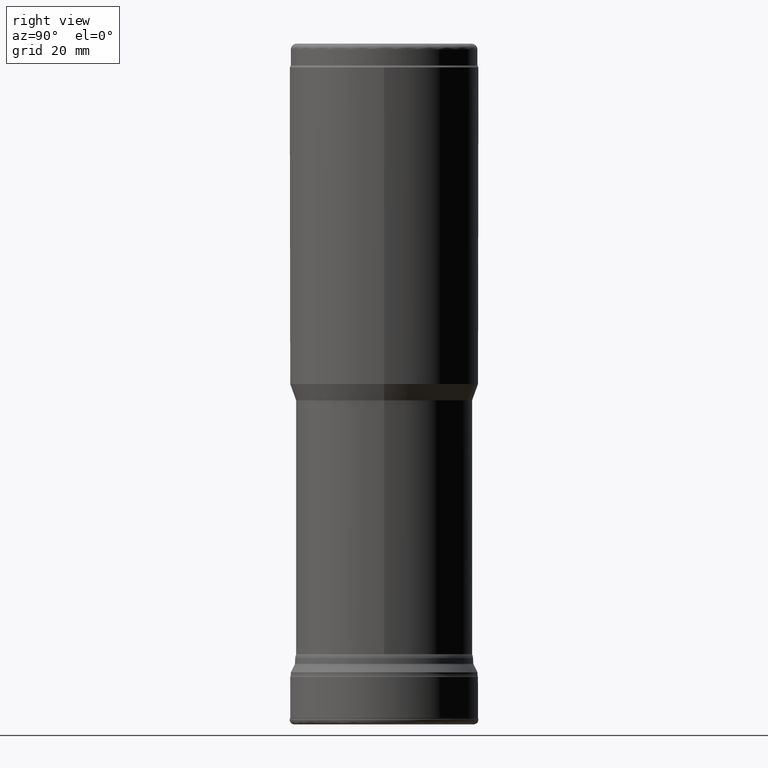
[diagram: clean part render]
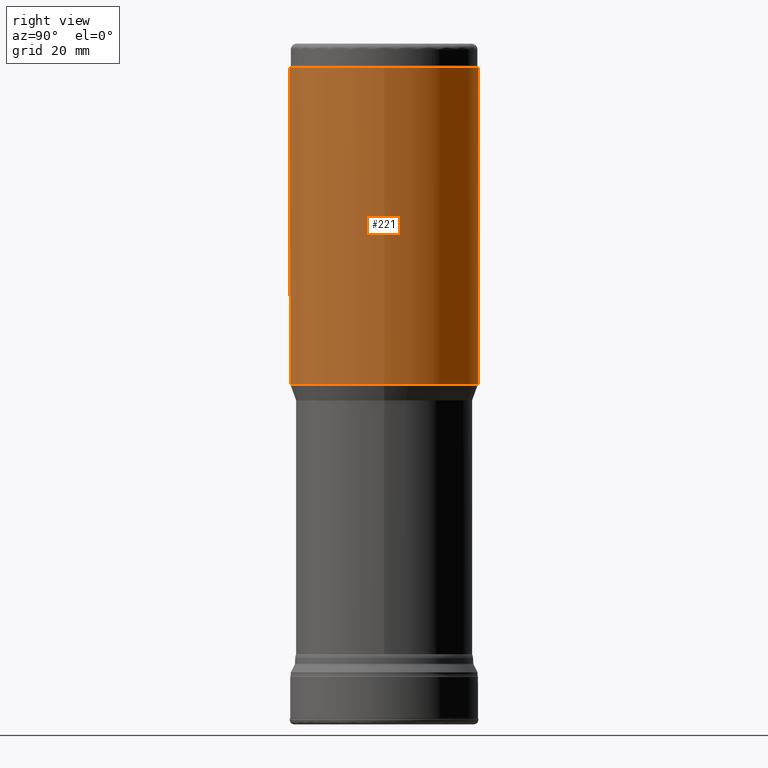
[diagram: same view with one face highlighted and labeled with its STEP entity id]
A machine part, right view. The second image highlights one B-rep face of the part: STEP entity #221.
In plain terms, the highlighted cylindrical surface (bore or boss wall) has radius 15.875 mm, axis along (0, 0, 1).
Its self-contained STEP definition (entity closure, byte-faithful):
#221=ADVANCED_FACE('',(#320,#321,#322),#284,.T.);
#284=CYLINDRICAL_SURFACE('',#993,15.875);
#291=LINE('',#1614,#304);
#292=LINE('',#1646,#305);
#293=LINE('',#1661,#306);
#294=LINE('',#1694,#307);
#304=VECTOR('',#1065,1.);
#305=VECTOR('',#1068,1.);
#306=VECTOR('',#1069,1.);
#307=VECTOR('',#1072,1.);
#317=ELLIPSE('',#989,22.4506403026729,15.875);
#318=ELLIPSE('',#990,22.4506403026729,15.875);
#319=ELLIPSE('',#991,22.4506403026729,15.875);
#320=FACE_BOUND('',#423,.T.);
#321=FACE_BOUND('',#424,.T.);
#322=FACE_BOUND('',#425,.T.);
#423=EDGE_LOOP('',(#537));
#424=EDGE_LOOP('',(#538,#539,#540,#541,#542,#543,#544,#545));
#425=EDGE_LOOP('',(#546,#547,#548,#549,#550,#551));
#537=ORIENTED_EDGE('',*,*,#768,.T.);
#538=ORIENTED_EDGE('',*,*,#769,.F.);
#539=ORIENTED_EDGE('',*,*,#770,.T.);
#540=ORIENTED_EDGE('',*,*,#771,.F.);
#541=ORIENTED_EDGE('',*,*,#772,.T.);
#542=ORIENTED_EDGE('',*,*,#773,.F.);
#543=ORIENTED_EDGE('',*,*,#774,.T.);
#544=ORIENTED_EDGE('',*,*,#775,.F.);
#545=ORIENTED_EDGE('',*,*,#776,.T.);
#546=ORIENTED_EDGE('',*,*,#777,.F.);
#547=ORIENTED_EDGE('',*,*,#778,.T.);
#548=ORIENTED_EDGE('',*,*,#779,.F.);
#549=ORIENTED_EDGE('',*,*,#780,.T.);
#550=ORIENTED_EDGE('',*,*,#781,.F.);
#551=ORIENTED_EDGE('',*,*,#782,.T.);
#697=VERTEX_POINT('',#1596);
#698=VERTEX_POINT('',#1598);
#699=VERTEX_POINT('',#1599);
#700=VERTEX_POINT('',#1613);
#701=VERTEX_POINT('',#1615);
#702=VERTEX_POINT('',#1629);
#703=VERTEX_POINT('',#1631);
#704=VERTEX_POINT('',#1645);
#705=VERTEX_POINT('',#1647);
#706=VERTEX_POINT('',#1662);
#707=VERTEX_POINT('',#1663);
#708=VERTEX_POINT('',#1677);
#709=VERTEX_POINT('',#1679);
#710=VERTEX_POINT('',#1693);
#711=VERTEX_POINT('',#1695);
#768=EDGE_CURVE('',#697,#697,#848,.T.);
#769=EDGE_CURVE('',#698,#699,#317,.T.);
#770=EDGE_CURVE('',#698,#700,#934,.T.);
#771=EDGE_CURVE('',#701,#700,#291,.T.);
#772=EDGE_CURVE('',#701,#702,#935,.T.);
#773=EDGE_CURVE('',#703,#702,#318,.T.);
#774=EDGE_CURVE('',#703,#704,#936,.T.);
#775=EDGE_CURVE('',#705,#704,#292,.T.);
#776=EDGE_CURVE('',#705,#699,#937,.T.);
#777=EDGE_CURVE('',#706,#707,#293,.T.);
#778=EDGE_CURVE('',#706,#708,#938,.T.);
#779=EDGE_CURVE('',#709,#708,#319,.T.);
#780=EDGE_CURVE('',#709,#710,#939,.T.);
#781=EDGE_CURVE('',#711,#710,#294,.T.);
#782=EDGE_CURVE('',#711,#707,#849,.T.);
#848=CIRCLE('',#988,15.875);
#849=CIRCLE('',#992,15.875);
#934=B_SPLINE_CURVE_WITH_KNOTS('',3,(#1600,#1601,#1602,#1603,#1604,#1605,
#1606,#1607,#1608,#1609,#1610,#1611,#1612),.UNSPECIFIED.,.F.,.F.,(4,3,3,
3,4),(0.,0.454533174547895,0.702164538890534,0.910432884672755,1.),
 .UNSPECIFIED.);
#935=B_SPLINE_CURVE_WITH_KNOTS('',3,(#1616,#1617,#1618,#1619,#1620,#1621,
#1622,#1623,#1624,#1625,#1626,#1627,#1628),.UNSPECIFIED.,.F.,.F.,(4,3,3,
3,4),(0.,0.199147216076033,0.441583635070387,0.807737111943086,1.),
 .UNSPECIFIED.);
#936=B_SPLINE_CURVE_WITH_KNOTS('',3,(#1632,#1633,#1634,#1635,#1636,#1637,
#1638,#1639,#1640,#1641,#1642,#1643,#1644),.UNSPECIFIED.,.F.,.F.,(4,3,3,
3,4),(0.,0.454533174547895,0.702164538890535,0.910432884672755,1.),
 .UNSPECIFIED.);
#937=B_SPLINE_CURVE_WITH_KNOTS('',3,(#1648,#1649,#1650,#1651,#1652,#1653,
#1654,#1655,#1656,#1657,#1658,#1659,#1660),.UNSPECIFIED.,.F.,.F.,(4,3,3,
3,4),(0.,0.199147216076033,0.441583635070387,0.807737111943086,1.),
 .UNSPECIFIED.);
#938=B_SPLINE_CURVE_WITH_KNOTS('',3,(#1664,#1665,#1666,#1667,#1668,#1669,
#1670,#1671,#1672,#1673,#1674,#1675,#1676),.UNSPECIFIED.,.F.,.F.,(4,3,3,
3,4),(0.,0.199147216076046,0.441583635070416,0.807737111943139,1.),
 .UNSPECIFIED.);
#939=B_SPLINE_CURVE_WITH_KNOTS('',3,(#1680,#1681,#1682,#1683,#1684,#1685,
#1686,#1687,#1688,#1689,#1690,#1691,#1692),.UNSPECIFIED.,.F.,.F.,(4,3,3,
3,4),(0.,0.454533174547852,0.702164538890504,0.910432884672796,1.),
 .UNSPECIFIED.);
#988=AXIS2_PLACEMENT_3D('',#1595,#1061,#1062);
#989=AXIS2_PLACEMENT_3D('',#1597,#1063,#1064);
#990=AXIS2_PLACEMENT_3D('',#1630,#1066,#1067);
#991=AXIS2_PLACEMENT_3D('',#1678,#1070,#1071);
#992=AXIS2_PLACEMENT_3D('',#1696,#1073,#1074);
#993=AXIS2_PLACEMENT_3D('',#1697,#1075,#1076);
#1061=DIRECTION('',(1.17145536458252E-15,0.,1.));
#1062=DIRECTION('',(1.,0.,-1.31128703695885E-15));
#1063=DIRECTION('',(-0.707106781186548,0.,-0.707106781186547));
#1064=DIRECTION('',(-0.707106781186547,0.,0.707106781186548));
#1065=DIRECTION('',(1.17145536458252E-15,0.,1.));
#1066=DIRECTION('',(-0.707106781186547,0.,0.707106781186548));
#1067=DIRECTION('',(0.707106781186548,0.,0.707106781186547));
#1068=DIRECTION('',(-1.17145536458252E-15,0.,-1.));
#1069=DIRECTION('',(1.17145536458252E-15,0.,1.));
#1070=DIRECTION('',(-0.707106781186547,0.,0.707106781186548));
#1071=DIRECTION('',(0.707106781186548,0.,0.707106781186547));
#1072=DIRECTION('',(-1.17145536458252E-15,0.,-1.));
#1073=DIRECTION('',(-1.17145536458252E-15,0.,-1.));
#1074=DIRECTION('',(-1.,0.,8.74191357972563E-16));
#1075=DIRECTION('',(1.17145536458252E-15,0.,1.));
#1076=DIRECTION('',(1.,0.,-8.74191357972564E-16));
#1595=CARTESIAN_POINT('',(6.69486740858913E-14,0.,57.15));
#1596=CARTESIAN_POINT('',(15.8750000000001,0.,57.15));
#1597=CARTESIAN_POINT('',(9.18349839919301E-14,0.,78.393925));
#1598=CARTESIAN_POINT('',(-13.5752679656439,-8.22968557485394,91.9691929656441));
#1599=CARTESIAN_POINT('',(-13.5752679656439,8.22968557485394,91.9691929656441));
#1600=CARTESIAN_POINT('',(-13.5752679656439,-8.22968557485394,91.9691929656441));
#1601=CARTESIAN_POINT('',(-13.5555907887269,-8.26214403842777,91.9495157887271));
#1602=CARTESIAN_POINT('',(-13.5365680579467,-8.29324127122087,91.9251620734196));
#1603=CARTESIAN_POINT('',(-13.5208425116277,-8.31880056112415,91.8947094161788));
#1604=CARTESIAN_POINT('',(-13.5122227966049,-8.33281049061592,91.8780172630558));
#1605=CARTESIAN_POINT('',(-13.5044914646337,-8.34532550776588,91.8591557895354));
#1606=CARTESIAN_POINT('',(-13.4986654187337,-8.35473859034977,91.8385001207551));
#1607=CARTESIAN_POINT('',(-13.4937706131111,-8.36264707757229,91.8211460721568));
#1608=CARTESIAN_POINT('',(-13.4901610267413,-8.36846404353178,91.8021104321874));
#1609=CARTESIAN_POINT('',(-13.4884955668759,-8.37114761202832,91.7826761583768));
#1610=CARTESIAN_POINT('',(-13.4877709546286,-8.37231518540508,91.7742206482129));
#1611=CARTESIAN_POINT('',(-13.4873999999999,-8.3729126497295,91.7656273741105));
#1612=CARTESIAN_POINT('',(-13.4873999999999,-8.3729126497295,91.7570609312881));
#1613=CARTESIAN_POINT('',(-13.4873999999999,-8.3729126497295,91.7570609312881));
#1614=CARTESIAN_POINT('',(-13.4873999999999,-8.3729126497295,114.3));
#1615=CARTESIAN_POINT('',(-13.4873999999999,-8.3729126497295,78.8991890687119));
#1616=CARTESIAN_POINT('',(-13.4873999999999,-8.3729126497295,78.8991890687119));
#1617=CARTESIAN_POINT('',(-13.4873999999999,-8.3729126497295,78.8803689359517));
#1618=CARTESIAN_POINT('',(-13.4892545485356,-8.36992693774145,78.8613151409939));
#1619=CARTESIAN_POINT('',(-13.492596038309,-8.36453687582313,78.8435956862697));
#1620=CARTESIAN_POINT('',(-13.4966604929406,-8.35798061989729,78.8220424496281));
#1621=CARTESIAN_POINT('',(-13.5029748527276,-8.34778398154642,78.8018244154474));
#1622=CARTESIAN_POINT('',(-13.510442768906,-8.3356800075406,78.7838864575324));
#1623=CARTESIAN_POINT('',(-13.5216923410307,-8.31744673800206,78.756864950259));
#1624=CARTESIAN_POINT('',(-13.5357984747801,-8.29449252987565,78.7340008349814));
#1625=CARTESIAN_POINT('',(-13.5507313658075,-8.27002445290939,78.7148308370284));
#1626=CARTESIAN_POINT('',(-13.558638319584,-8.25706862585495,78.704680338546));
#1627=CARTESIAN_POINT('',(-13.5668642919063,-8.24354784478495,78.6954607080893));
#1628=CARTESIAN_POINT('',(-13.5752679656429,-8.22968557485582,78.6870570343528));
#1629=CARTESIAN_POINT('',(-13.5752679656439,-8.22968557485394,78.687057034356));
#1630=CARTESIAN_POINT('',(1.08081195570106E-13,0.,92.262325));
#1631=CARTESIAN_POINT('',(-13.5752679656439,8.22968557485394,78.687057034356));
#1632=CARTESIAN_POINT('',(-13.5752679656439,8.22968557485394,78.687057034356));
#1633=CARTESIAN_POINT('',(-13.555590788727,8.26214403842777,78.706734211273));
#1634=CARTESIAN_POINT('',(-13.5365680579467,8.29324127122087,78.7310879265805));
#1635=CARTESIAN_POINT('',(-13.5208425116277,8.31880056112415,78.7615405838212));
#1636=CARTESIAN_POINT('',(-13.512222796605,8.33281049061592,78.7782327369442));
#1637=CARTESIAN_POINT('',(-13.5044914646337,8.34532550776588,78.7970942104646));
#1638=CARTESIAN_POINT('',(-13.4986654187337,8.35473859034977,78.8177498792449));
#1639=CARTESIAN_POINT('',(-13.4937706131111,8.36264707757229,78.8351039278432));
#1640=CARTESIAN_POINT('',(-13.4901610267413,8.36846404353178,78.8541395678126));
#1641=CARTESIAN_POINT('',(-13.4884955668759,8.37114761202832,78.8735738416232));
#1642=CARTESIAN_POINT('',(-13.4877709546286,8.37231518540508,78.8820293517871));
#1643=CARTESIAN_POINT('',(-13.4873999999999,8.3729126497295,78.8906226258895));
#1644=CARTESIAN_POINT('',(-13.4873999999999,8.3729126497295,78.8991890687119));
#1645=CARTESIAN_POINT('',(-13.4873999999999,8.3729126497295,78.8991890687119));
#1646=CARTESIAN_POINT('',(-13.4873999999999,8.3729126497295,114.3));
#1647=CARTESIAN_POINT('',(-13.4873999999999,8.3729126497295,91.7570609312881));
#1648=CARTESIAN_POINT('',(-13.4873999999999,8.3729126497295,91.7570609312881));
#1649=CARTESIAN_POINT('',(-13.4873999999999,8.3729126497295,91.7758810640483));
#1650=CARTESIAN_POINT('',(-13.4892545485356,8.36992693774145,91.7949348590061));
#1651=CARTESIAN_POINT('',(-13.492596038309,8.36453687582313,91.8126543137303));
#1652=CARTESIAN_POINT('',(-13.4966604929405,8.35798061989729,91.8342075503719));
#1653=CARTESIAN_POINT('',(-13.5029748527276,8.34778398154642,91.8544255845526));
#1654=CARTESIAN_POINT('',(-13.510442768906,8.3356800075406,91.8723635424676));
#1655=CARTESIAN_POINT('',(-13.5216923410307,8.31744673800206,91.899385049741));
#1656=CARTESIAN_POINT('',(-13.5357984747801,8.29449252987565,91.9222491650187));
#1657=CARTESIAN_POINT('',(-13.5507313658075,8.27002445290939,91.9414191629716));
#1658=CARTESIAN_POINT('',(-13.558638319584,8.25706862585495,91.951569661454));
#1659=CARTESIAN_POINT('',(-13.5668642919063,8.24354784478495,91.9607892919107));
#1660=CARTESIAN_POINT('',(-13.5752679656429,8.22968557485582,91.9691929656472));
#1661=CARTESIAN_POINT('',(-13.4873999999999,-8.37291264972951,114.3));
#1662=CARTESIAN_POINT('',(-13.4873999999999,-8.3729126497295,101.724264068712));
#1663=CARTESIAN_POINT('',(-13.4873999999999,-8.37291264972951,110.3));
#1664=CARTESIAN_POINT('',(-13.4873999999999,-8.3729126497295,101.724264068712));
#1665=CARTESIAN_POINT('',(-13.4873999999999,-8.3729126497295,101.705443935952));
#1666=CARTESIAN_POINT('',(-13.4892545485356,-8.36992693774145,101.686390140994));
#1667=CARTESIAN_POINT('',(-13.492596038309,-8.36453687582313,101.66867068627));
#1668=CARTESIAN_POINT('',(-13.4966604929405,-8.35798061989729,101.647117449628));
#1669=CARTESIAN_POINT('',(-13.5029748527276,-8.34778398154642,101.626899415447));
#1670=CARTESIAN_POINT('',(-13.510442768906,-8.3356800075406,101.608961457532));
#1671=CARTESIAN_POINT('',(-13.5216923410307,-8.31744673800206,101.581939950259));
#1672=CARTESIAN_POINT('',(-13.5357984747801,-8.29449252987565,101.559075834981));
#1673=CARTESIAN_POINT('',(-13.5507313658074,-8.27002445290939,101.539905837028));
#1674=CARTESIAN_POINT('',(-13.558638319584,-8.25706862585496,101.529755338546));
#1675=CARTESIAN_POINT('',(-13.5668642919063,-8.24354784478496,101.520535708089));
#1676=CARTESIAN_POINT('',(-13.5752679656429,-8.22968557485583,101.512132034353));
#1677=CARTESIAN_POINT('',(-13.5752679656439,-8.22968557485394,101.512132034356));
#1678=CARTESIAN_POINT('',(1.34819752125855E-13,0.,115.0874));
#1679=CARTESIAN_POINT('',(-13.5752679656439,8.22968557485394,101.512132034356));
#1680=CARTESIAN_POINT('',(-13.5752679656439,8.22968557485394,101.512132034356));
#1681=CARTESIAN_POINT('',(-13.5555907887269,8.26214403842777,101.531809211273));
#1682=CARTESIAN_POINT('',(-13.5365680579467,8.29324127122088,101.55616292658));
#1683=CARTESIAN_POINT('',(-13.5208425116276,8.31880056112416,101.586615583821));
#1684=CARTESIAN_POINT('',(-13.5122227966049,8.33281049061593,101.603307736944));
#1685=CARTESIAN_POINT('',(-13.5044914646337,8.34532550776588,101.622169210465));
#1686=CARTESIAN_POINT('',(-13.4986654187337,8.35473859034977,101.642824879245));
#1687=CARTESIAN_POINT('',(-13.4937706131111,8.36264707757229,101.660178927843));
#1688=CARTESIAN_POINT('',(-13.4901610267413,8.36846404353179,101.679214567813));
#1689=CARTESIAN_POINT('',(-13.4884955668759,8.37114761202832,101.698648841623));
#1690=CARTESIAN_POINT('',(-13.4877709546286,8.37231518540508,101.707104351787));
#1691=CARTESIAN_POINT('',(-13.4873999999999,8.3729126497295,101.715697625889));
#1692=CARTESIAN_POINT('',(-13.4873999999999,8.3729126497295,101.724264068712));
#1693=CARTESIAN_POINT('',(-13.4873999999999,8.3729126497295,101.724264068712));
#1694=CARTESIAN_POINT('',(-13.4873999999999,8.37291264972951,114.3));
#1695=CARTESIAN_POINT('',(-13.4873999999999,8.37291264972951,110.3));
#1696=CARTESIAN_POINT('',(1.29211526713452E-13,0.,110.3));
#1697=CARTESIAN_POINT('',(1.33897348171783E-13,0.,114.3));